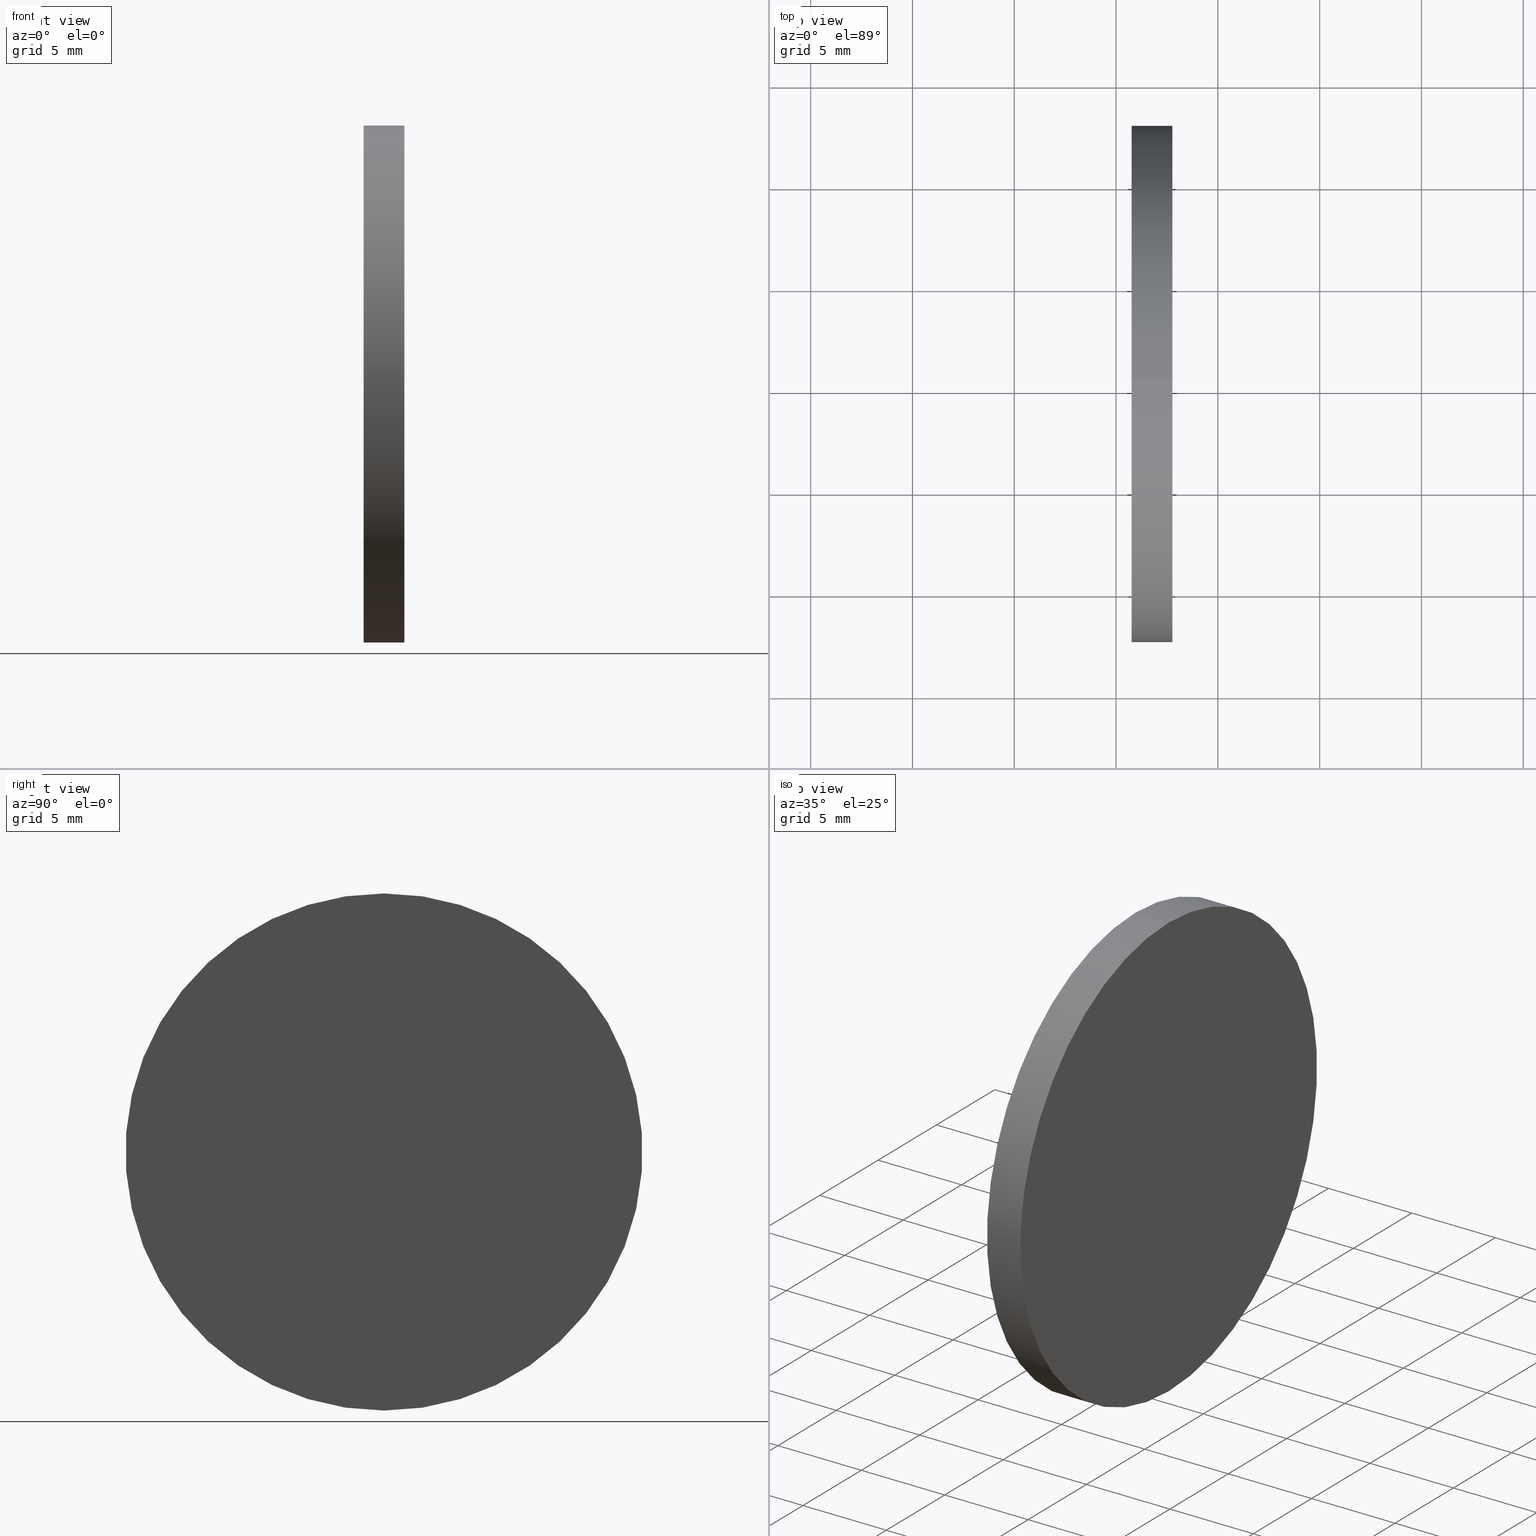
[diagram: canonical four-view strip — front | top / right | iso, engineering-drawing reading convention]
A machine part, canonical four-view strip (front | top / right | iso — engineering-drawing reading convention). The complete STEP part file that produces these views, byte-faithful:
ISO-10303-21;
HEADER;
FILE_DESCRIPTION (( 'STEP AP214' ),
    '1' );
FILE_NAME ('100522.STEP',
    '2019-06-13T03:13:33',
    ( '' ),
    ( '' ),
    'SwSTEP 2.0',
    'SolidWorks 2016',
    '' );
FILE_SCHEMA (( 'AUTOMOTIVE_DESIGN' ));
ENDSEC;

DATA;
#1 = UNCERTAINTY_MEASURE_WITH_UNIT (LENGTH_MEASURE( 1.000000000000000100E-005 ), #93, 'distance_accuracy_value', 'NONE');
#2 = VECTOR ( 'NONE', #17, 1000.000000000000000 ) ;
#3 = VERTEX_POINT ( 'NONE', #24 ) ;
#4 = PRODUCT_DEFINITION_CONTEXT ( 'detailed design', #42, 'design' ) ;
#5 =( NAMED_UNIT ( * ) PLANE_ANGLE_UNIT ( ) SI_UNIT ( $, .RADIAN. ) );
#6 = CLOSED_SHELL ( 'NONE', ( #49, #65, #59, #75 ) ) ;
#7 = CARTESIAN_POINT ( 'NONE',  ( 117.7645554762012000, 65.23355492641219700, 0.0000000000000000000 ) ) ;
#8 = DIRECTION ( 'NONE',  ( -1.000000000000000000, -0.0000000000000000000, -0.0000000000000000000 ) ) ;
#9 = PRODUCT_DEFINITION_FORMATION_WITH_SPECIFIED_SOURCE ( '�κ�', '', #18, .NOT_KNOWN. ) ;
#10 = DIRECTION ( 'NONE',  ( 0.0000000000000000000, 0.0000000000000000000, 1.000000000000000000 ) ) ;
#11 = DIRECTION ( 'NONE',  ( -1.000000000000000000, -0.0000000000000000000, -0.0000000000000000000 ) ) ;
#12 = VERTEX_POINT ( 'NONE', #117 ) ;
#13 = STYLED_ITEM ( 'NONE', ( #107 ), #23 ) ;
#14 = FILL_AREA_STYLE ('',( #57 ) ) ;
#15 = ORIENTED_EDGE ( 'NONE', *, *, #124, .T. ) ;
#16 = CARTESIAN_POINT ( 'NONE',  ( 117.7645554762012000, 65.23355492641219700, -12.70000000000000300 ) ) ;
#17 = DIRECTION ( 'NONE',  ( -1.000000000000000000, -0.0000000000000000000, -0.0000000000000000000 ) ) ;
#18 = PRODUCT ( '100522', '100522', '', ( #101 ) ) ;
#19 = SURFACE_SIDE_STYLE ('',( #69 ) ) ;
#20 = ORIENTED_EDGE ( 'NONE', *, *, #82, .T. ) ;
#21 = APPLICATION_PROTOCOL_DEFINITION ( 'draft international standard', 'automotive_design', 1998, #120 ) ;
#22 = CIRCLE ( 'NONE', #103, 12.70000000000000300 ) ;
#23 = MANIFOLD_SOLID_BREP ( '��ת1', #6 ) ;
#24 = CARTESIAN_POINT ( 'NONE',  ( 115.7645554762012000, 65.23355492641219700, 12.70000000000000300 ) ) ;
#25 = CARTESIAN_POINT ( 'NONE',  ( 110.1653732284884500, 65.23355492641219700, 0.0000000000000000000 ) ) ;
#26 = PLANE ( 'NONE',  #46 ) ;
#27 = CIRCLE ( 'NONE', #95, 12.70000000000000300 ) ;
#28 = EDGE_LOOP ( 'NONE', ( #87, #137, #113, #133 ) ) ;
#29 = AXIS2_PLACEMENT_3D ( 'NONE', #36, #83, #128 ) ;
#30 =( LENGTH_UNIT ( ) NAMED_UNIT ( * ) SI_UNIT ( .MILLI., .METRE. ) );
#31 = CARTESIAN_POINT ( 'NONE',  ( 110.1653732284884500, 65.23355492641219700, -12.70000000000000300 ) ) ;
#32 = SURFACE_STYLE_FILL_AREA ( #14 ) ;
#33 =( NAMED_UNIT ( * ) SI_UNIT ( $, .STERADIAN. ) SOLID_ANGLE_UNIT ( ) );
#34 = PRODUCT_DEFINITION ( 'δ֪', '', #9, #4 ) ;
#35 = AXIS2_PLACEMENT_3D ( 'NONE', #25, #37, #118 ) ;
#36 = CARTESIAN_POINT ( 'NONE',  ( 110.1653732284884500, 65.23355492641219700, 0.0000000000000000000 ) ) ;
#37 = DIRECTION ( 'NONE',  ( -1.000000000000000000, -0.0000000000000000000, -0.0000000000000000000 ) ) ;
#38 = CARTESIAN_POINT ( 'NONE',  ( 115.7645554762012000, 65.23355492641219700, 0.0000000000000000000 ) ) ;
#39 = CARTESIAN_POINT ( 'NONE',  ( 115.7645554762012000, 65.23355492641219700, 0.0000000000000000000 ) ) ;
#40 =( NAMED_UNIT ( * ) SI_UNIT ( $, .STERADIAN. ) SOLID_ANGLE_UNIT ( ) );
#41 = CIRCLE ( 'NONE', #110, 12.70000000000000300 ) ;
#42 = APPLICATION_CONTEXT ( 'automotive_design' ) ;
#43 = ORIENTED_EDGE ( 'NONE', *, *, #124, .F. ) ;
#44 = PRESENTATION_STYLE_ASSIGNMENT (( #88 ) ) ;
#45 =( LENGTH_UNIT ( ) NAMED_UNIT ( * ) SI_UNIT ( .MILLI., .METRE. ) );
#46 = AXIS2_PLACEMENT_3D ( 'NONE', #38, #100, #64 ) ;
#47 = VERTEX_POINT ( 'NONE', #56 ) ;
#48 =( NAMED_UNIT ( * ) PLANE_ANGLE_UNIT ( ) SI_UNIT ( $, .RADIAN. ) );
#49 = ADVANCED_FACE ( 'NONE', ( #94 ), #52, .T. ) ;
#50 = APPLICATION_PROTOCOL_DEFINITION ( 'draft international standard', 'automotive_design', 1998, #42 ) ;
#51 = EDGE_CURVE ( 'NONE', #122, #47, #22, .T. ) ;
#52 = CYLINDRICAL_SURFACE ( 'NONE', #29, 12.70000000000000300 ) ;
#53 = SHAPE_DEFINITION_REPRESENTATION ( #85, #112 ) ;
#54 = AXIS2_PLACEMENT_3D ( 'NONE', #114, #77, #74 ) ;
#55 = SURFACE_SIDE_STYLE ('',( #32 ) ) ;
#56 = CARTESIAN_POINT ( 'NONE',  ( 117.7645554762012000, 65.23355492641219700, 12.70000000000000300 ) ) ;
#57 = FILL_AREA_STYLE_COLOUR ( '', #72 ) ;
#58 = ORIENTED_EDGE ( 'NONE', *, *, #91, .T. ) ;
#59 = ADVANCED_FACE ( 'NONE', ( #104 ), #84, .T. ) ;
#60 = CARTESIAN_POINT ( 'NONE',  ( 117.7645554762012000, 65.23355492641219700, 0.0000000000000000000 ) ) ;
#61 = UNCERTAINTY_MEASURE_WITH_UNIT (LENGTH_MEASURE( 1.000000000000000100E-005 ), #30, 'distance_accuracy_value', 'NONE');
#62 =( GEOMETRIC_REPRESENTATION_CONTEXT ( 3 ) GLOBAL_UNCERTAINTY_ASSIGNED_CONTEXT ( ( #1 ) ) GLOBAL_UNIT_ASSIGNED_CONTEXT ( ( #93, #5, #136 ) ) REPRESENTATION_CONTEXT ( 'NONE', 'WORKASPACE' ) );
#63 = ORIENTED_EDGE ( 'NONE', *, *, #121, .F. ) ;
#64 = DIRECTION ( 'NONE',  ( 0.0000000000000000000, 0.0000000000000000000, -1.000000000000000000 ) ) ;
#65 = ADVANCED_FACE ( 'NONE', ( #138 ), #67, .F. ) ;
#66 = DIRECTION ( 'NONE',  ( -1.000000000000000000, -0.0000000000000000000, -0.0000000000000000000 ) ) ;
#67 = PLANE ( 'NONE',  #54 ) ;
#68 = DIRECTION ( 'NONE',  ( 0.0000000000000000000, 0.0000000000000000000, 1.000000000000000000 ) ) ;
#69 = SURFACE_STYLE_FILL_AREA ( #109 ) ;
#70 = UNCERTAINTY_MEASURE_WITH_UNIT (LENGTH_MEASURE( 1.000000000000000100E-005 ), #45, 'distance_accuracy_value', 'NONE');
#71 =( GEOMETRIC_REPRESENTATION_CONTEXT ( 3 ) GLOBAL_UNCERTAINTY_ASSIGNED_CONTEXT ( ( #70 ) ) GLOBAL_UNIT_ASSIGNED_CONTEXT ( ( #45, #131, #40 ) ) REPRESENTATION_CONTEXT ( 'NONE', 'WORKASPACE' ) );
#72 = COLOUR_RGB ( '',1.000000000000000000, 1.000000000000000000, 1.000000000000000000 ) ;
#73 = PRESENTATION_LAYER_ASSIGNMENT (  '', '', ( #13 ) ) ;
#74 = DIRECTION ( 'NONE',  ( -0.0000000000000000000, 0.0000000000000000000, 1.000000000000000000 ) ) ;
#75 = ADVANCED_FACE ( 'NONE', ( #125 ), #26, .F. ) ;
#76 = CIRCLE ( 'NONE', #116, 12.70000000000000300 ) ;
#77 = DIRECTION ( 'NONE',  ( -1.000000000000000000, 0.0000000000000000000, -0.0000000000000000000 ) ) ;
#78 = CARTESIAN_POINT ( 'NONE',  ( 115.7645554762012000, 65.23355492641219700, 0.0000000000000000000 ) ) ;
#79 = STYLED_ITEM ( 'NONE', ( #44 ), #112 ) ;
#80 = VECTOR ( 'NONE', #96, 1000.000000000000000 ) ;
#81 = ORIENTED_EDGE ( 'NONE', *, *, #51, .F. ) ;
#82 = EDGE_CURVE ( 'NONE', #12, #3, #76, .T. ) ;
#83 = DIRECTION ( 'NONE',  ( -1.000000000000000000, -0.0000000000000000000, -0.0000000000000000000 ) ) ;
#84 = CYLINDRICAL_SURFACE ( 'NONE', #35, 12.70000000000000300 ) ;
#85 = PRODUCT_DEFINITION_SHAPE ( 'NONE', 'NONE',  #34 ) ;
#86 = PRESENTATION_LAYER_ASSIGNMENT (  '', '', ( #79 ) ) ;
#87 = ORIENTED_EDGE ( 'NONE', *, *, #91, .F. ) ;
#88 = SURFACE_STYLE_USAGE ( .BOTH. , #19 ) ;
#89 = CARTESIAN_POINT ( 'NONE',  ( 0.0000000000000000000, 0.0000000000000000000, 0.0000000000000000000 ) ) ;
#90 = DIRECTION ( 'NONE',  ( 1.000000000000000000, 0.0000000000000000000, 0.0000000000000000000 ) ) ;
#91 = EDGE_CURVE ( 'NONE', #122, #12, #108, .T. ) ;
#92 = EDGE_LOOP ( 'NONE', ( #15, #58, #123, #63 ) ) ;
#93 =( LENGTH_UNIT ( ) NAMED_UNIT ( * ) SI_UNIT ( .MILLI., .METRE. ) );
#94 = FACE_OUTER_BOUND ( 'NONE', #92, .T. ) ;
#95 = AXIS2_PLACEMENT_3D ( 'NONE', #7, #11, #10 ) ;
#96 = DIRECTION ( 'NONE',  ( -1.000000000000000000, -0.0000000000000000000, -0.0000000000000000000 ) ) ;
#97 = COLOUR_RGB ( '',1.000000000000000000, 1.000000000000000000, 1.000000000000000000 ) ;
#98 = DIRECTION ( 'NONE',  ( 0.0000000000000000000, 0.0000000000000000000, 1.000000000000000000 ) ) ;
#99 = EDGE_CURVE ( 'NONE', #3, #12, #41, .T. ) ;
#100 = DIRECTION ( 'NONE',  ( 1.000000000000000000, 0.0000000000000000000, 0.0000000000000000000 ) ) ;
#101 = PRODUCT_CONTEXT ( 'NONE', #120, 'mechanical' ) ;
#102 = EDGE_LOOP ( 'NONE', ( #43, #81 ) ) ;
#103 = AXIS2_PLACEMENT_3D ( 'NONE', #60, #126, #132 ) ;
#104 = FACE_OUTER_BOUND ( 'NONE', #28, .T. ) ;
#105 = LINE ( 'NONE', #140, #2 ) ;
#106 = AXIS2_PLACEMENT_3D ( 'NONE', #89, #68, #90 ) ;
#107 = PRESENTATION_STYLE_ASSIGNMENT (( #119 ) ) ;
#108 = LINE ( 'NONE', #31, #80 ) ;
#109 = FILL_AREA_STYLE ('',( #134 ) ) ;
#110 = AXIS2_PLACEMENT_3D ( 'NONE', #39, #66, #98 ) ;
#111 = DIRECTION ( 'NONE',  ( 0.0000000000000000000, 0.0000000000000000000, 1.000000000000000000 ) ) ;
#112 = ADVANCED_BREP_SHAPE_REPRESENTATION ( '100522', ( #23, #106 ), #71 ) ;
#113 = ORIENTED_EDGE ( 'NONE', *, *, #121, .T. ) ;
#114 = CARTESIAN_POINT ( 'NONE',  ( 117.7645554762012000, 65.23355492641219700, 0.0000000000000000000 ) ) ;
#115 =( GEOMETRIC_REPRESENTATION_CONTEXT ( 3 ) GLOBAL_UNCERTAINTY_ASSIGNED_CONTEXT ( ( #61 ) ) GLOBAL_UNIT_ASSIGNED_CONTEXT ( ( #30, #48, #33 ) ) REPRESENTATION_CONTEXT ( 'NONE', 'WORKASPACE' ) );
#116 = AXIS2_PLACEMENT_3D ( 'NONE', #78, #8, #111 ) ;
#117 = CARTESIAN_POINT ( 'NONE',  ( 115.7645554762012000, 65.23355492641219700, -12.70000000000000300 ) ) ;
#118 = DIRECTION ( 'NONE',  ( 0.0000000000000000000, 0.0000000000000000000, 1.000000000000000000 ) ) ;
#119 = SURFACE_STYLE_USAGE ( .BOTH. , #55 ) ;
#120 = APPLICATION_CONTEXT ( 'automotive_design' ) ;
#121 = EDGE_CURVE ( 'NONE', #47, #3, #105, .T. ) ;
#122 = VERTEX_POINT ( 'NONE', #16 ) ;
#123 = ORIENTED_EDGE ( 'NONE', *, *, #99, .F. ) ;
#124 = EDGE_CURVE ( 'NONE', #47, #122, #27, .T. ) ;
#125 = FACE_OUTER_BOUND ( 'NONE', #139, .T. ) ;
#126 = DIRECTION ( 'NONE',  ( -1.000000000000000000, -0.0000000000000000000, -0.0000000000000000000 ) ) ;
#127 = MECHANICAL_DESIGN_GEOMETRIC_PRESENTATION_REPRESENTATION (  '', ( #13 ), #62 ) ;
#128 = DIRECTION ( 'NONE',  ( 0.0000000000000000000, 0.0000000000000000000, 1.000000000000000000 ) ) ;
#129 = ORIENTED_EDGE ( 'NONE', *, *, #99, .T. ) ;
#130 = MECHANICAL_DESIGN_GEOMETRIC_PRESENTATION_REPRESENTATION (  '', ( #79 ), #115 ) ;
#131 =( NAMED_UNIT ( * ) PLANE_ANGLE_UNIT ( ) SI_UNIT ( $, .RADIAN. ) );
#132 = DIRECTION ( 'NONE',  ( 0.0000000000000000000, 0.0000000000000000000, 1.000000000000000000 ) ) ;
#133 = ORIENTED_EDGE ( 'NONE', *, *, #82, .F. ) ;
#134 = FILL_AREA_STYLE_COLOUR ( '', #97 ) ;
#135 = PRODUCT_RELATED_PRODUCT_CATEGORY ( 'part', '', ( #18 ) ) ;
#136 =( NAMED_UNIT ( * ) SI_UNIT ( $, .STERADIAN. ) SOLID_ANGLE_UNIT ( ) );
#137 = ORIENTED_EDGE ( 'NONE', *, *, #51, .T. ) ;
#138 = FACE_OUTER_BOUND ( 'NONE', #102, .T. ) ;
#139 = EDGE_LOOP ( 'NONE', ( #129, #20 ) ) ;
#140 = CARTESIAN_POINT ( 'NONE',  ( 110.1653732284884500, 65.23355492641219700, 12.70000000000000300 ) ) ;
ENDSEC;
END-ISO-10303-21;
